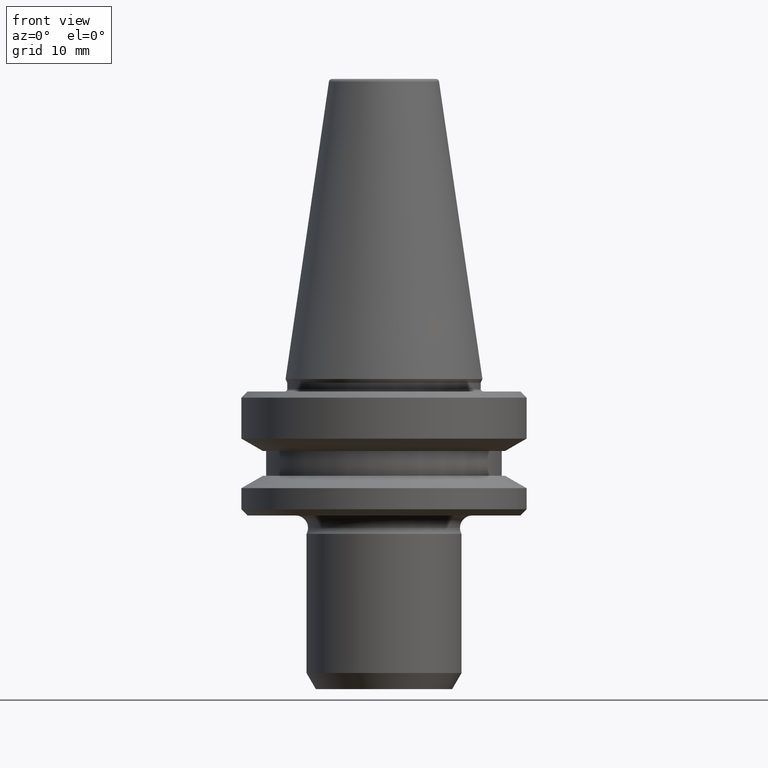
[diagram: clean part render]
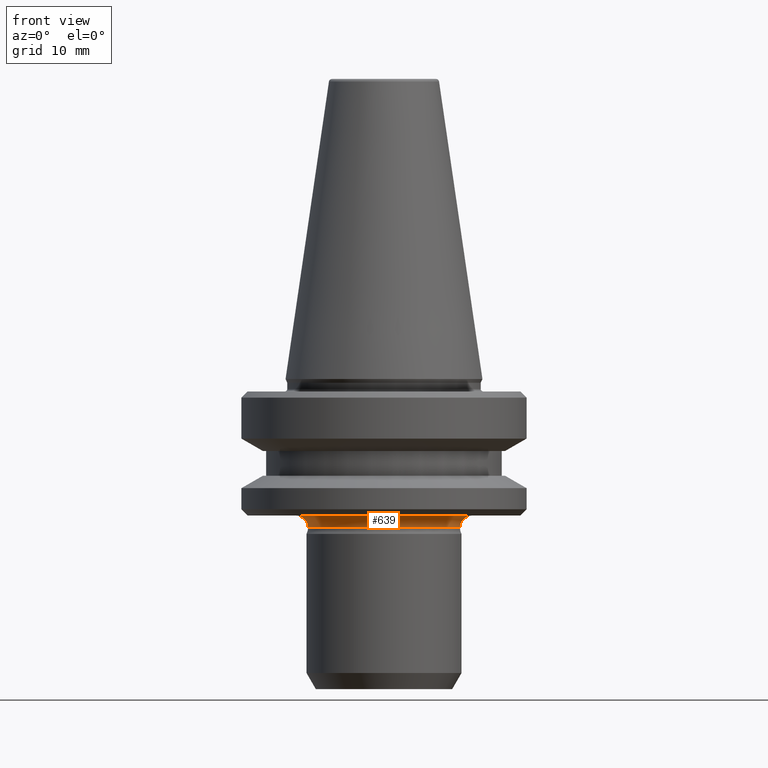
[diagram: same view with one face highlighted and labeled with its STEP entity id]
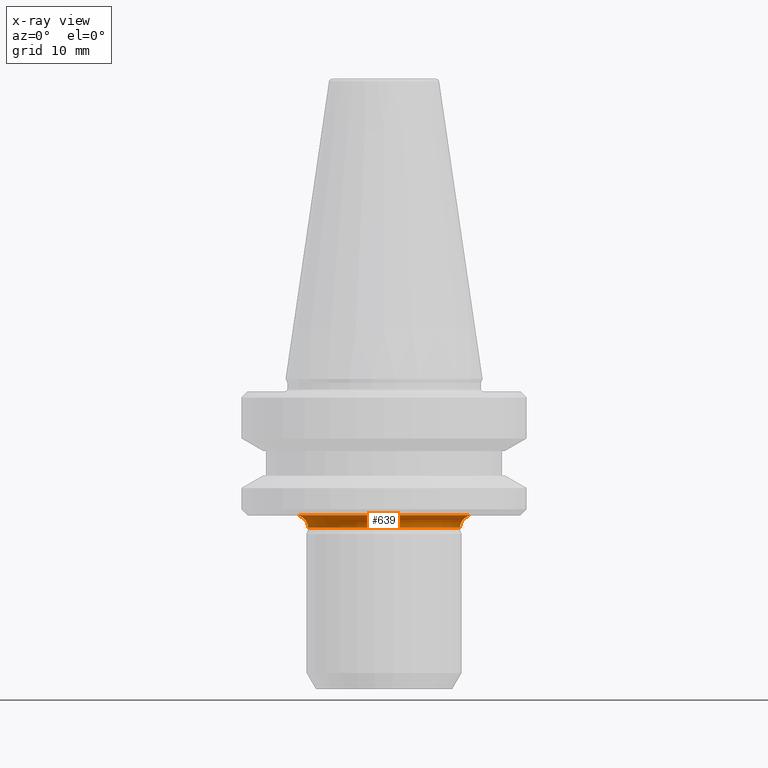
[diagram: x-ray of the same camera — body ghosted, the highlighted face saturated]
A machine part, front view. The second image highlights one B-rep face of the part: STEP entity #639.
The next image is the same camera in x-ray: the body ghosted, the highlighted face saturated — about 0% of this face is hidden behind the body in this view.
In plain terms, the highlighted toroidal blend (fillet) surface has major radius 14.25 mm and minor (blend) radius 2 mm.
Its self-contained STEP definition (entity closure, byte-faithful):
#1 = DIRECTION ( 'NONE',  ( -1.000000000000000000, 1.224646799147353000E-016, 0.0000000000000000000 ) ) ;
#30 = EDGE_CURVE ( 'NONE', #744, #652, #729, .T. ) ;
#69 = CIRCLE ( 'NONE', #851, 2.000000000000005300 ) ;
#132 = CIRCLE ( 'NONE', #1025, 12.25000000000009100 ) ;
#148 = FACE_OUTER_BOUND ( 'NONE', #946, .T. ) ;
#151 = DIRECTION ( 'NONE',  ( -0.0000000000000000000, -0.0000000000000000000, 1.000000000000000000 ) ) ;
#174 = ORIENTED_EDGE ( 'NONE', *, *, #732, .F. ) ;
#195 = CARTESIAN_POINT ( 'NONE',  ( 0.0000000000000000000, 0.0000000000000000000, -24.00000000000002100 ) ) ;
#201 = VERTEX_POINT ( 'NONE', #566 ) ;
#289 = DIRECTION ( 'NONE',  ( 1.000000000000000000, 0.0000000000000000000, 0.0000000000000000000 ) ) ;
#383 = CARTESIAN_POINT ( 'NONE',  ( -14.25000000000009600, 1.745121688784990300E-015, -22.00000000000002100 ) ) ;
#395 = EDGE_CURVE ( 'NONE', #744, #201, #398, .T. ) ;
#398 = CIRCLE ( 'NONE', #573, 2.000000000000005300 ) ;
#431 = DIRECTION ( 'NONE',  ( 1.000000000000000000, 0.0000000000000000000, 0.0000000000000000000 ) ) ;
#451 = DIRECTION ( 'NONE',  ( 0.0000000000000000000, -1.000000000000000000, 0.0000000000000000000 ) ) ;
#482 = CARTESIAN_POINT ( 'NONE',  ( 0.0000000000000000000, 0.0000000000000000000, -22.00000000000002100 ) ) ;
#494 = DIRECTION ( 'NONE',  ( 1.224646799147353200E-016, 1.000000000000000000, 0.0000000000000000000 ) ) ;
#499 = EDGE_CURVE ( 'NONE', #201, #910, #132, .T. ) ;
#566 = CARTESIAN_POINT ( 'NONE',  ( -12.25000000000009100, 1.500192328955519000E-015, -24.00000000000002100 ) ) ;
#571 = CARTESIAN_POINT ( 'NONE',  ( -14.25000000000009600, 1.745121688784990300E-015, -24.00000000000002100 ) ) ;
#573 = AXIS2_PLACEMENT_3D ( 'NONE', #571, #494, #1 ) ;
#584 = TOROIDAL_SURFACE ( 'NONE', #989, 14.25000000000009600, 2.000000000000004400 ) ;
#589 = AXIS2_PLACEMENT_3D ( 'NONE', #482, #853, #431 ) ;
#594 = ORIENTED_EDGE ( 'NONE', *, *, #395, .T. ) ;
#638 = CARTESIAN_POINT ( 'NONE',  ( 0.0000000000000000000, 0.0000000000000000000, -24.00000000000002100 ) ) ;
#639 = ADVANCED_FACE ( 'NONE', ( #148 ), #584, .F. ) ;
#652 = VERTEX_POINT ( 'NONE', #918 ) ;
#673 = DIRECTION ( 'NONE',  ( -0.0000000000000000000, -0.0000000000000000000, 1.000000000000000000 ) ) ;
#715 = DIRECTION ( 'NONE',  ( 1.000000000000000000, 0.0000000000000000000, 0.0000000000000000000 ) ) ;
#721 = ORIENTED_EDGE ( 'NONE', *, *, #499, .T. ) ;
#729 = CIRCLE ( 'NONE', #589, 14.25000000000009600 ) ;
#732 = EDGE_CURVE ( 'NONE', #652, #910, #69, .T. ) ;
#744 = VERTEX_POINT ( 'NONE', #383 ) ;
#824 = CARTESIAN_POINT ( 'NONE',  ( 12.25000000000009100, 0.0000000000000000000, -24.00000000000002100 ) ) ;
#851 = AXIS2_PLACEMENT_3D ( 'NONE', #925, #451, #1007 ) ;
#853 = DIRECTION ( 'NONE',  ( -0.0000000000000000000, -0.0000000000000000000, 1.000000000000000000 ) ) ;
#910 = VERTEX_POINT ( 'NONE', #824 ) ;
#918 = CARTESIAN_POINT ( 'NONE',  ( 14.25000000000009600, 0.0000000000000000000, -22.00000000000002100 ) ) ;
#925 = CARTESIAN_POINT ( 'NONE',  ( 14.25000000000009600, 0.0000000000000000000, -24.00000000000002100 ) ) ;
#946 = EDGE_LOOP ( 'NONE', ( #594, #721, #174, #1034 ) ) ;
#989 = AXIS2_PLACEMENT_3D ( 'NONE', #195, #673, #289 ) ;
#1007 = DIRECTION ( 'NONE',  ( 0.0000000000000000000, 0.0000000000000000000, -1.000000000000000000 ) ) ;
#1025 = AXIS2_PLACEMENT_3D ( 'NONE', #638, #151, #715 ) ;
#1034 = ORIENTED_EDGE ( 'NONE', *, *, #30, .F. ) ;